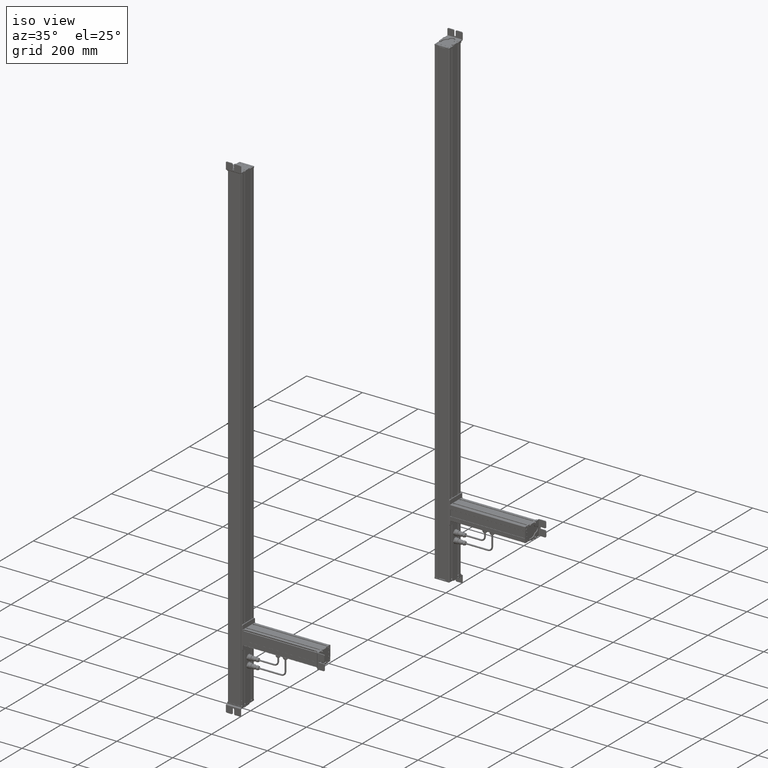
[diagram: clean part render]
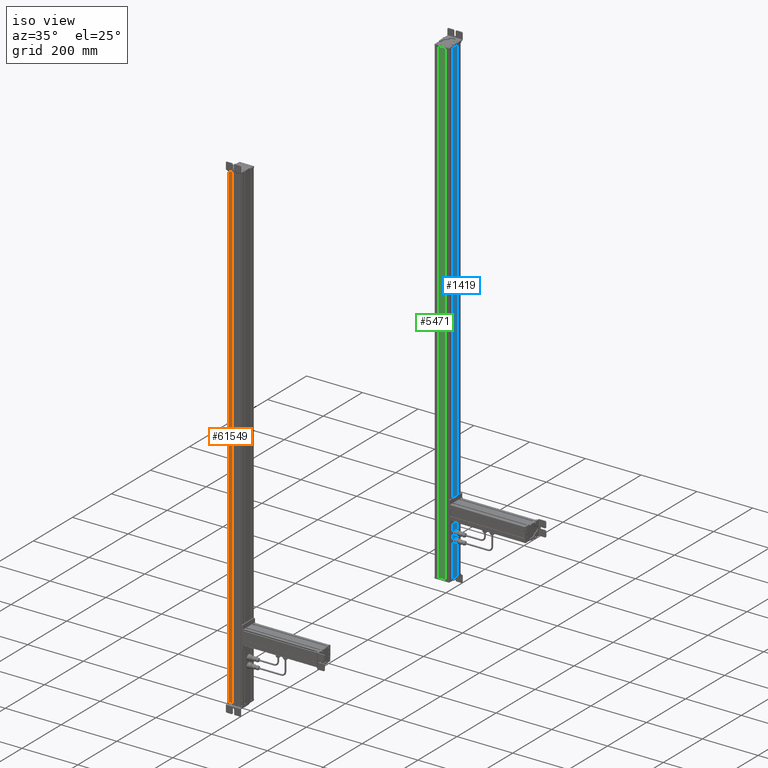
[diagram: same view with three faces highlighted in distinct colors, each labeled with its STEP entity id]
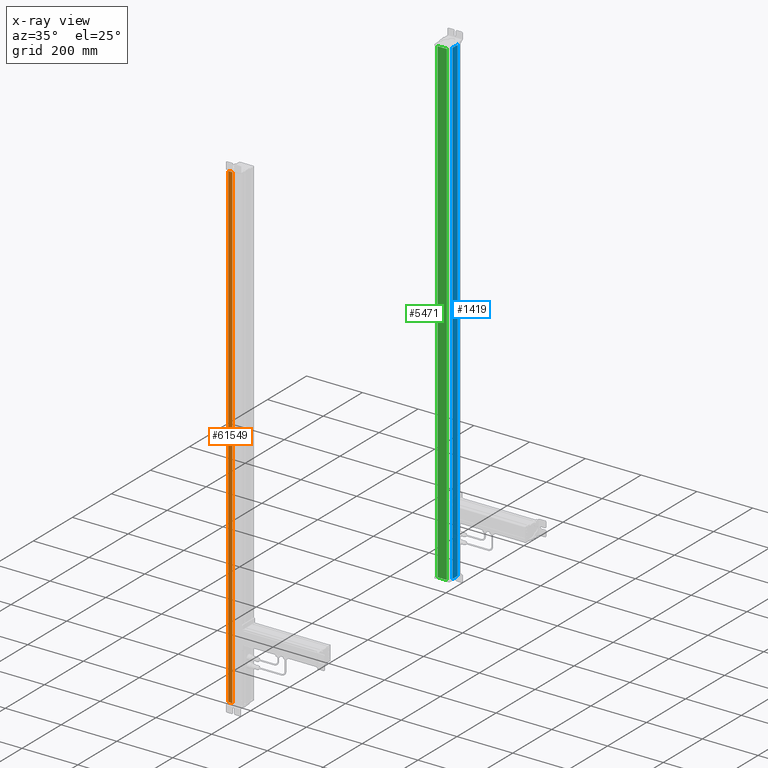
[diagram: x-ray of the same camera — body ghosted, the three highlighted faces saturated]
A machine part, iso view with three faces highlighted in distinct colors.
The next image is the same camera in x-ray (body ghosted, the three faces saturated) — at least one of them is partly hidden behind the body in this view.
Their STEP definitions:

[orange] entity #61549 — the highlighted planar face has unit normal (0, -1, 0).
#61497=CARTESIAN_POINT('Vertex',(617.246770587,120.060780121,0.)) ;
#61500=CARTESIAN_POINT('Line Origine',(617.246770587,120.060780121,861.)) ;
#61504=CARTESIAN_POINT('Vertex',(617.246770587,120.060780121,1722.)) ;
#61519=CARTESIAN_POINT('Axis2P3D Location',(647.67209889,120.060780121,0.)) ;
#61524=CARTESIAN_POINT('Line Origine',(624.483052148,120.060780121,0.)) ;
#61528=CARTESIAN_POINT('Vertex',(631.719333708,120.060780121,0.)) ;
#61531=CARTESIAN_POINT('Line Origine',(631.719333708,120.060780121,861.)) ;
#61535=CARTESIAN_POINT('Vertex',(631.719333708,120.060780121,1722.)) ;
#61538=CARTESIAN_POINT('Line Origine',(624.483052148,120.060780121,1722.)) ;
#61501=DIRECTION('Vector Direction',(0.,0.,1.)) ;
#61520=DIRECTION('Axis2P3D Direction',(0.,-1.,0.)) ;
#61521=DIRECTION('Axis2P3D XDirection',(1.,0.,0.)) ;
#61525=DIRECTION('Vector Direction',(1.,0.,0.)) ;
#61532=DIRECTION('Vector Direction',(0.,0.,1.)) ;
#61539=DIRECTION('Vector Direction',(1.,0.,0.)) ;
#61522=AXIS2_PLACEMENT_3D('Plane Axis2P3D',#61519,#61520,#61521) ;
#61544=ORIENTED_EDGE('',*,*,#61506,.F.) ;
#61545=ORIENTED_EDGE('',*,*,#61530,.T.) ;
#61546=ORIENTED_EDGE('',*,*,#61537,.T.) ;
#61547=ORIENTED_EDGE('',*,*,#61542,.F.) ;
#61502=VECTOR('Line Direction',#61501,1.) ;
#61526=VECTOR('Line Direction',#61525,1.) ;
#61533=VECTOR('Line Direction',#61532,1.) ;
#61540=VECTOR('Line Direction',#61539,1.) ;
#61549=ADVANCED_FACE('Body.2',(#61548),#61523,.T.) ;
#61506=EDGE_CURVE('',#61498,#61505,#61503,.T.) ;
#61530=EDGE_CURVE('',#61498,#61529,#61527,.T.) ;
#61537=EDGE_CURVE('',#61529,#61536,#61534,.T.) ;
#61542=EDGE_CURVE('',#61505,#61536,#61541,.T.) ;
#61543=EDGE_LOOP('',(#61544,#61545,#61546,#61547)) ;
#61548=FACE_OUTER_BOUND('',#61543,.T.) ;
#61503=LINE('Line',#61500,#61502) ;
#61527=LINE('Line',#61524,#61526) ;
#61534=LINE('Line',#61531,#61533) ;
#61541=LINE('Line',#61538,#61540) ;
#61523=PLANE('Plane',#61522) ;
#61498=VERTEX_POINT('',#61497) ;
#61505=VERTEX_POINT('',#61504) ;
#61529=VERTEX_POINT('',#61528) ;
#61536=VERTEX_POINT('',#61535) ;

[blue] entity #1419 — the highlighted planar face has unit normal (1, 0, 0).
#660=CARTESIAN_POINT('Axis2P3D Location',(613.195548937,133.067790275,0.)) ;
#1372=CARTESIAN_POINT('Vertex',(613.195548938,166.010394004,0.)) ;
#1375=CARTESIAN_POINT('Line Origine',(613.195548938,166.010394004,861.)) ;
#1379=CARTESIAN_POINT('Vertex',(613.195548938,166.010394004,1722.)) ;
#1394=CARTESIAN_POINT('Line Origine',(613.195548937,152.38909214,0.)) ;
#1398=CARTESIAN_POINT('Vertex',(613.195548937,138.767790274,0.)) ;
#1401=CARTESIAN_POINT('Line Origine',(613.195548937,138.767790274,861.)) ;
#1405=CARTESIAN_POINT('Vertex',(613.195548937,138.767790274,1722.)) ;
#1408=CARTESIAN_POINT('Line Origine',(613.195548937,152.38909214,1722.)) ;
#661=DIRECTION('Axis2P3D Direction',(-1.,0.,0.)) ;
#662=DIRECTION('Axis2P3D XDirection',(0.,-1.,0.)) ;
#1376=DIRECTION('Vector Direction',(0.,0.,1.)) ;
#1395=DIRECTION('Vector Direction',(0.,-1.,0.)) ;
#1402=DIRECTION('Vector Direction',(0.,0.,1.)) ;
#1409=DIRECTION('Vector Direction',(0.,-1.,0.)) ;
#663=AXIS2_PLACEMENT_3D('Plane Axis2P3D',#660,#661,#662) ;
#1414=ORIENTED_EDGE('',*,*,#1381,.F.) ;
#1415=ORIENTED_EDGE('',*,*,#1400,.T.) ;
#1416=ORIENTED_EDGE('',*,*,#1407,.T.) ;
#1417=ORIENTED_EDGE('',*,*,#1412,.F.) ;
#1377=VECTOR('Line Direction',#1376,1.) ;
#1396=VECTOR('Line Direction',#1395,1.) ;
#1403=VECTOR('Line Direction',#1402,1.) ;
#1410=VECTOR('Line Direction',#1409,1.) ;
#1419=ADVANCED_FACE('Body.2',(#1418),#664,.T.) ;
#1381=EDGE_CURVE('',#1373,#1380,#1378,.T.) ;
#1400=EDGE_CURVE('',#1373,#1399,#1397,.T.) ;
#1407=EDGE_CURVE('',#1399,#1406,#1404,.T.) ;
#1412=EDGE_CURVE('',#1380,#1406,#1411,.T.) ;
#1413=EDGE_LOOP('',(#1414,#1415,#1416,#1417)) ;
#1418=FACE_OUTER_BOUND('',#1413,.T.) ;
#1378=LINE('Line',#1375,#1377) ;
#1397=LINE('Line',#1394,#1396) ;
#1404=LINE('Line',#1401,#1403) ;
#1411=LINE('Line',#1408,#1410) ;
#664=PLANE('Plane',#663) ;
#1373=VERTEX_POINT('',#1372) ;
#1380=VERTEX_POINT('',#1379) ;
#1399=VERTEX_POINT('',#1398) ;
#1406=VERTEX_POINT('',#1405) ;

[green] entity #5471 — the highlighted planar face has unit normal (0, -1, 0).
#5388=CARTESIAN_POINT('Vertex',(622.718933105,180.560203323,0.)) ;
#5391=CARTESIAN_POINT('Line Origine',(639.443450928,180.560203323,0.)) ;
#5395=CARTESIAN_POINT('Vertex',(656.16796875,180.560203323,0.)) ;
#5428=CARTESIAN_POINT('Vertex',(622.718933105,180.560203323,1722.)) ;
#5431=CARTESIAN_POINT('Line Origine',(622.718933105,180.560203323,861.)) ;
#5448=CARTESIAN_POINT('Axis2P3D Location',(656.16796875,180.560203323,0.)) ;
#5453=CARTESIAN_POINT('Line Origine',(656.16796875,180.560203323,861.)) ;
#5457=CARTESIAN_POINT('Vertex',(656.16796875,180.560203323,1722.)) ;
#5460=CARTESIAN_POINT('Line Origine',(639.443450928,180.560203323,1722.)) ;
#5392=DIRECTION('Vector Direction',(-1.,0.,0.)) ;
#5432=DIRECTION('Vector Direction',(0.,0.,1.)) ;
#5449=DIRECTION('Axis2P3D Direction',(-0.,1.,0.)) ;
#5450=DIRECTION('Axis2P3D XDirection',(-1.,-0.,0.)) ;
#5454=DIRECTION('Vector Direction',(0.,0.,1.)) ;
#5461=DIRECTION('Vector Direction',(-1.,0.,0.)) ;
#5451=AXIS2_PLACEMENT_3D('Plane Axis2P3D',#5448,#5449,#5450) ;
#5466=ORIENTED_EDGE('',*,*,#5459,.F.) ;
#5467=ORIENTED_EDGE('',*,*,#5397,.F.) ;
#5468=ORIENTED_EDGE('',*,*,#5435,.T.) ;
#5469=ORIENTED_EDGE('',*,*,#5464,.F.) ;
#5393=VECTOR('Line Direction',#5392,1.) ;
#5433=VECTOR('Line Direction',#5432,1.) ;
#5455=VECTOR('Line Direction',#5454,1.) ;
#5462=VECTOR('Line Direction',#5461,1.) ;
#5471=ADVANCED_FACE('Body.3',(#5470),#5452,.T.) ;
#5397=EDGE_CURVE('',#5389,#5396,#5394,.F.) ;
#5435=EDGE_CURVE('',#5389,#5429,#5434,.T.) ;
#5459=EDGE_CURVE('',#5396,#5458,#5456,.T.) ;
#5464=EDGE_CURVE('',#5458,#5429,#5463,.T.) ;
#5465=EDGE_LOOP('',(#5466,#5467,#5468,#5469)) ;
#5470=FACE_OUTER_BOUND('',#5465,.T.) ;
#5394=LINE('Line',#5391,#5393) ;
#5434=LINE('Line',#5431,#5433) ;
#5456=LINE('Line',#5453,#5455) ;
#5463=LINE('Line',#5460,#5462) ;
#5452=PLANE('Plane',#5451) ;
#5389=VERTEX_POINT('',#5388) ;
#5396=VERTEX_POINT('',#5395) ;
#5429=VERTEX_POINT('',#5428) ;
#5458=VERTEX_POINT('',#5457) ;